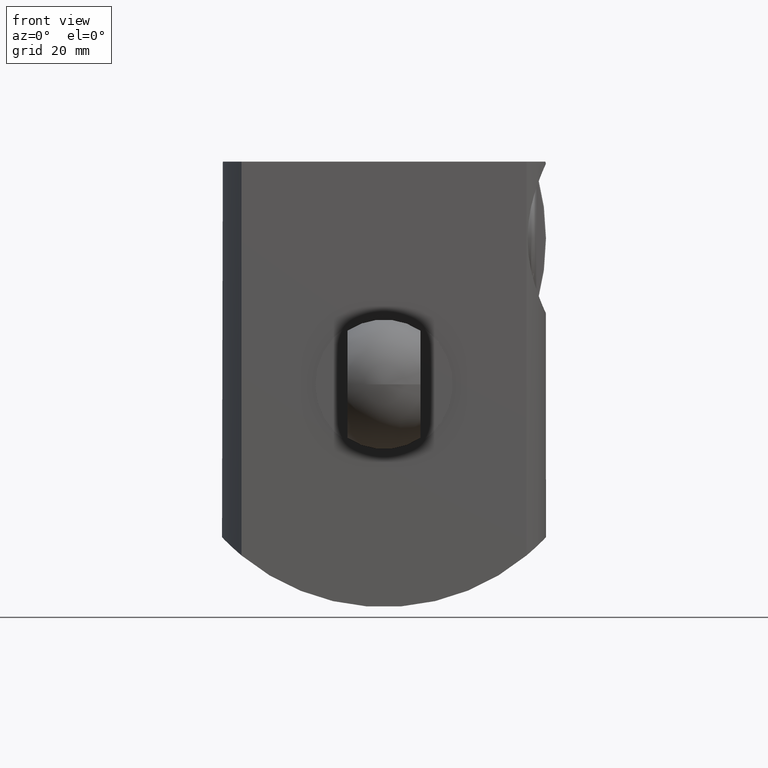
[diagram: clean part render]
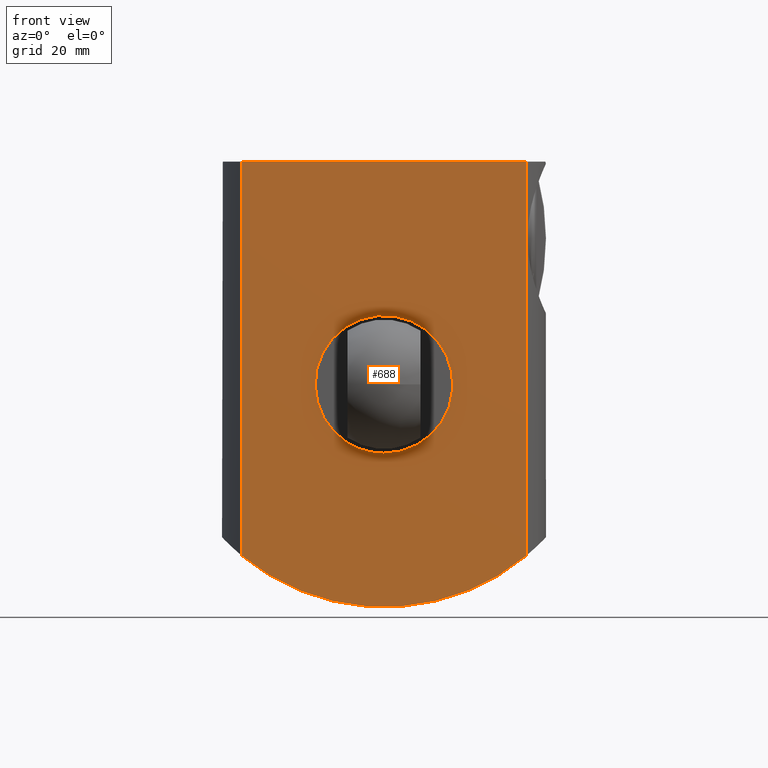
[diagram: same view with one face highlighted and labeled with its STEP entity id]
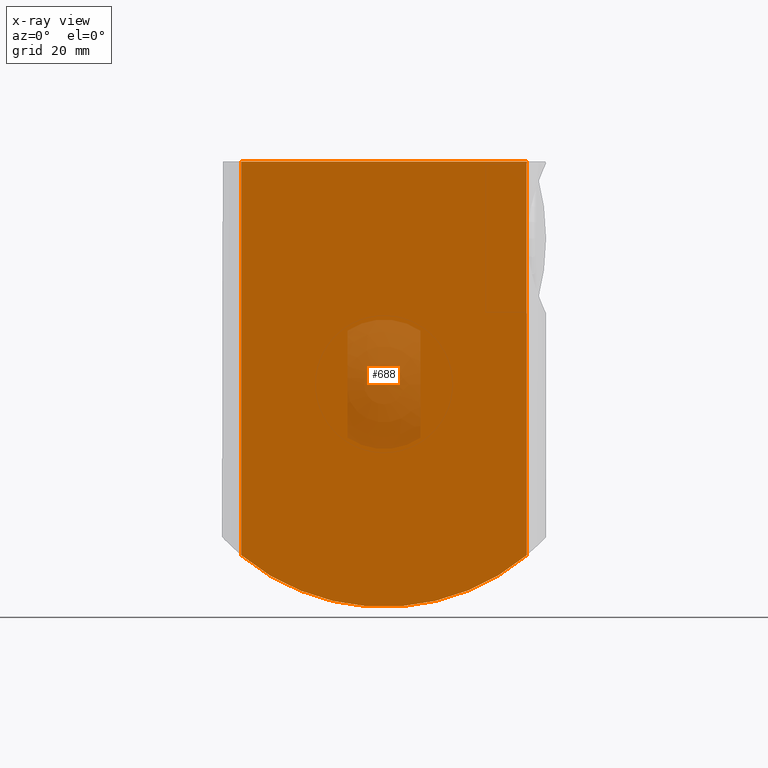
[diagram: x-ray of the same camera — body ghosted, the highlighted face saturated]
A machine part, front view. The second image highlights one B-rep face of the part: STEP entity #688.
The next image is the same camera in x-ray: the body ghosted, the highlighted face saturated — about 7% of this face is hidden behind the body in this view.
In plain terms, the highlighted planar face has unit normal (0, 1, 0).
Its self-contained STEP definition (entity closure, byte-faithful):
#63=PLANE('',#775);
#80=FACE_OUTER_BOUND('',#124,.T.);
#124=EDGE_LOOP('',(#492,#493,#494,#495));
#186=LINE('',#1206,#211);
#188=LINE('',#1231,#213);
#190=LINE('',#1238,#215);
#211=VECTOR('',#884,10.);
#213=VECTOR('',#890,10.);
#215=VECTOR('',#902,10.);
#238=CIRCLE('',#774,55.);
#297=VERTEX_POINT('',#1184);
#300=VERTEX_POINT('',#1204);
#302=VERTEX_POINT('',#1209);
#305=VERTEX_POINT('',#1222);
#370=EDGE_CURVE('',#297,#300,#186,.T.);
#375=EDGE_CURVE('',#302,#305,#188,.T.);
#378=EDGE_CURVE('',#305,#297,#238,.T.);
#379=EDGE_CURVE('',#300,#302,#190,.T.);
#492=ORIENTED_EDGE('',*,*,#375,.T.);
#493=ORIENTED_EDGE('',*,*,#378,.T.);
#494=ORIENTED_EDGE('',*,*,#370,.T.);
#495=ORIENTED_EDGE('',*,*,#379,.T.);
#688=ADVANCED_FACE('',(#80),#63,.F.);
#774=AXIS2_PLACEMENT_3D('',#1236,#898,#899);
#775=AXIS2_PLACEMENT_3D('',#1237,#900,#901);
#884=DIRECTION('',(0.,0.,1.));
#890=DIRECTION('',(0.,0.,-1.));
#898=DIRECTION('center_axis',(0.,-1.,0.));
#899=DIRECTION('ref_axis',(0.727272727272727,0.,-0.686348585024614));
#900=DIRECTION('center_axis',(0.,1.,0.));
#901=DIRECTION('ref_axis',(1.,0.,0.));
#902=DIRECTION('',(-1.,0.,0.));
#1184=CARTESIAN_POINT('',(35.1994318135926,-19.,-42.2610932182338));
#1204=CARTESIAN_POINT('',(35.1994318135961,-19.,55.));
#1206=CARTESIAN_POINT('',(35.1994318135961,-19.,0.));
#1209=CARTESIAN_POINT('',(-35.1994318135961,-19.,55.));
#1222=CARTESIAN_POINT('',(-35.1994318135961,-19.,-42.2610932182309));
#1231=CARTESIAN_POINT('',(-35.1994318135961,-19.,0.));
#1236=CARTESIAN_POINT('Origin',(0.,-19.,0.));
#1237=CARTESIAN_POINT('Origin',(-4.44089209850063E-15,-19.,0.));
#1238=CARTESIAN_POINT('',(40.,-19.,55.));